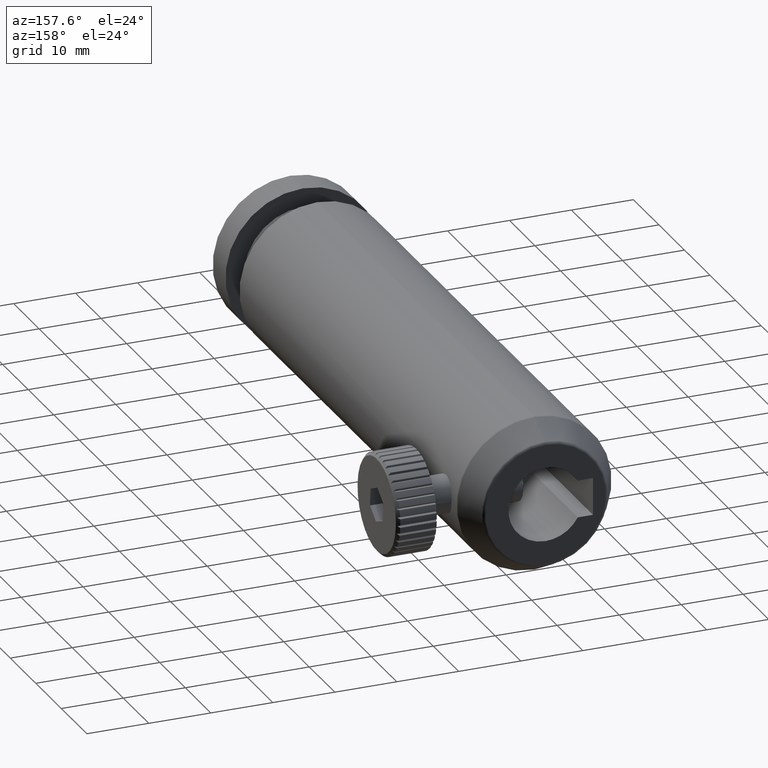
[diagram: clean part render]
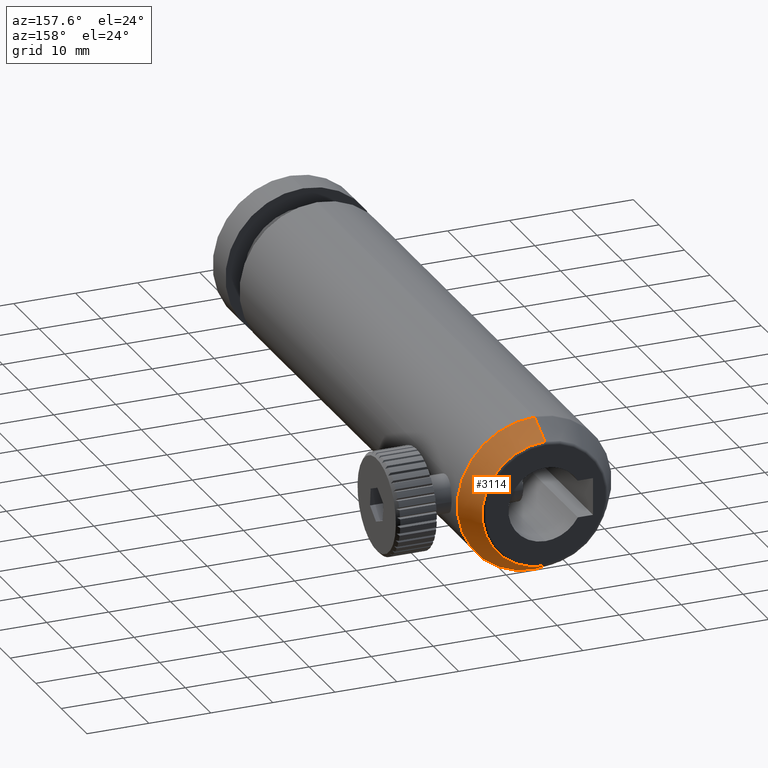
[diagram: same view with one face highlighted and labeled with its STEP entity id]
A machine part, auxiliary view. The second image highlights one B-rep face of the part: STEP entity #3114.
In plain terms, the highlighted conical surface has half-angle 29.055 deg.
Its self-contained STEP definition (entity closure, byte-faithful):
#18 = EDGE_CURVE ( 'NONE', #6581, #936, #8843, .T. ) ;
#85 = VECTOR ( 'NONE', #2055, 999.9999999999998863 ) ;
#626 = ORIENTED_EDGE ( 'NONE', *, *, #7698, .T. ) ;
#936 = VERTEX_POINT ( 'NONE', #1247 ) ;
#1018 = VERTEX_POINT ( 'NONE', #1610 ) ;
#1247 = CARTESIAN_POINT ( 'NONE',  ( -3.204778668925413854, 83.29964639188077058, -12.43707863806077007 ) ) ;
#1392 = AXIS2_PLACEMENT_3D ( 'NONE', #7893, #3463, #3553 ) ;
#1610 = CARTESIAN_POINT ( 'NONE',  ( -3.204778668925412521, 87.42920940597947776, -10.14287696356149304 ) ) ;
#2045 = AXIS2_PLACEMENT_3D ( 'NONE', #3764, #5674, #4975 ) ;
#2055 = DIRECTION ( 'NONE',  ( 0.0000000000000000000, -0.8741572761215387066, -0.4856429311786305547 ) ) ;
#2240 = EDGE_LOOP ( 'NONE', ( #626, #8612, #6213, #6398 ) ) ;
#3114 = ADVANCED_FACE ( 'NONE', ( #6415 ), #6701, .T. ) ;
#3463 = DIRECTION ( 'NONE',  ( 0.0000000000000000000, -1.000000000000000000, 0.0000000000000000000 ) ) ;
#3512 = VECTOR ( 'NONE', #7552, 999.9999999999998863 ) ;
#3531 = AXIS2_PLACEMENT_3D ( 'NONE', #5303, #7512, #8118 ) ;
#3553 = DIRECTION ( 'NONE',  ( 0.0000000000000000000, 0.0000000000000000000, -1.000000000000000000 ) ) ;
#3764 = CARTESIAN_POINT ( 'NONE',  ( -3.204778668925413854, 87.42920940597947776, 1.686509214775364569E-15 ) ) ;
#4975 = DIRECTION ( 'NONE',  ( 0.0000000000000000000, 0.0000000000000000000, 1.000000000000000000 ) ) ;
#5303 = CARTESIAN_POINT ( 'NONE',  ( -3.204778668925413854, 83.29964639188077058, 1.686509214775364569E-15 ) ) ;
#5674 = DIRECTION ( 'NONE',  ( -0.0000000000000000000, -1.000000000000000000, -0.0000000000000000000 ) ) ;
#5689 = CARTESIAN_POINT ( 'NONE',  ( -3.204778668925412077, 83.29964639188077058, 12.43707863806077363 ) ) ;
#6213 = ORIENTED_EDGE ( 'NONE', *, *, #18, .T. ) ;
#6318 = CIRCLE ( 'NONE', #2045, 10.14287696356150015 ) ;
#6398 = ORIENTED_EDGE ( 'NONE', *, *, #8032, .F. ) ;
#6415 = FACE_OUTER_BOUND ( 'NONE', #2240, .T. ) ;
#6487 = VERTEX_POINT ( 'NONE', #8518 ) ;
#6581 = VERTEX_POINT ( 'NONE', #5689 ) ;
#6701 = CONICAL_SURFACE ( 'NONE', #1392, 10.00000000000000888, 0.5070985043923351698 ) ;
#7057 = LINE ( 'NONE', #7651, #3512 ) ;
#7486 = EDGE_CURVE ( 'NONE', #6487, #6581, #7057, .T. ) ;
#7512 = DIRECTION ( 'NONE',  ( -0.0000000000000000000, 1.000000000000000000, -0.0000000000000000000 ) ) ;
#7552 = DIRECTION ( 'NONE',  ( 5.947410611964482345E-17, -0.8741572761215387066, 0.4856429311786305547 ) ) ;
#7651 = CARTESIAN_POINT ( 'NONE',  ( -3.204778668925412521, 87.68638794039016204, 10.00000000000001066 ) ) ;
#7698 = EDGE_CURVE ( 'NONE', #1018, #6487, #6318, .T. ) ;
#7893 = CARTESIAN_POINT ( 'NONE',  ( -3.204778668925413854, 87.68638794039016204, 1.686509214775364569E-15 ) ) ;
#8032 = EDGE_CURVE ( 'NONE', #1018, #936, #8442, .T. ) ;
#8118 = DIRECTION ( 'NONE',  ( 0.0000000000000000000, 0.0000000000000000000, -1.000000000000000000 ) ) ;
#8442 = LINE ( 'NONE', #8991, #85 ) ;
#8518 = CARTESIAN_POINT ( 'NONE',  ( -3.204778668925413854, 87.42920940597947776, 10.14287696356149659 ) ) ;
#8612 = ORIENTED_EDGE ( 'NONE', *, *, #7486, .T. ) ;
#8843 = CIRCLE ( 'NONE', #3531, 12.43707863806077718 ) ;
#8991 = CARTESIAN_POINT ( 'NONE',  ( -3.204778668925413854, 87.68638794039016204, -10.00000000000000711 ) ) ;